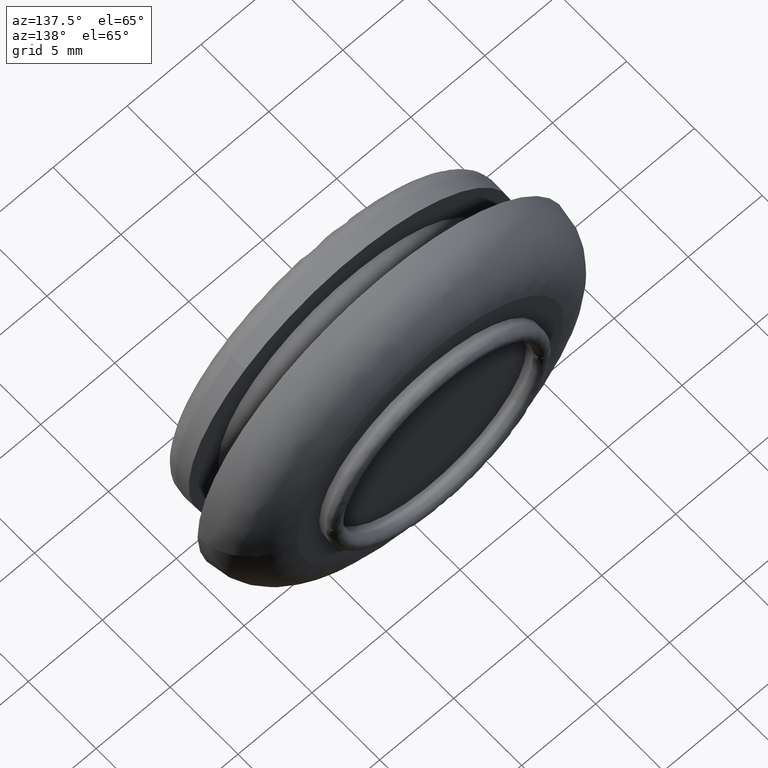
[diagram: clean part render]
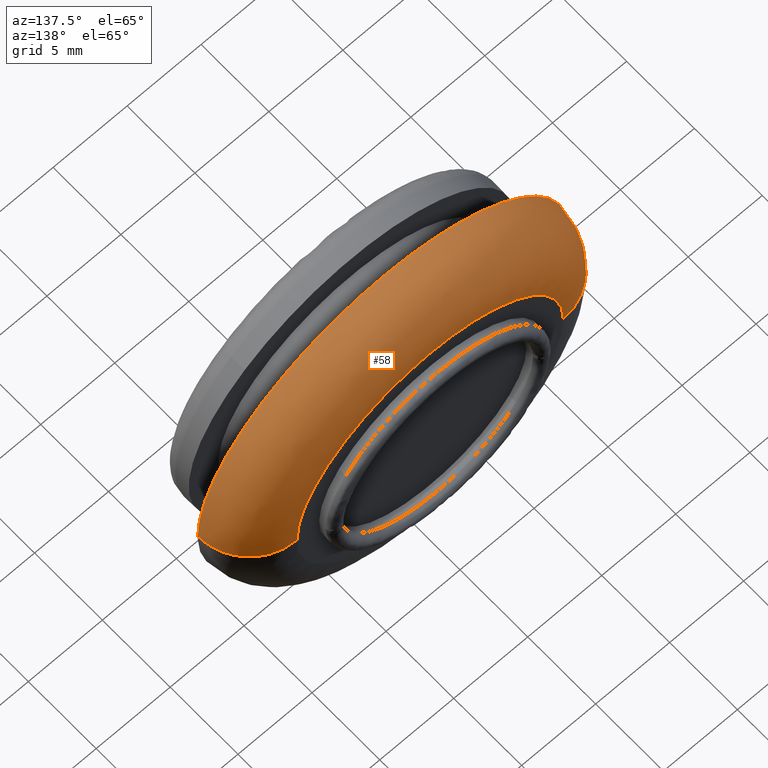
[diagram: same view with one face highlighted and labeled with its STEP entity id]
A machine part, auxiliary view. The second image highlights one B-rep face of the part: STEP entity #58.
In plain terms, the highlighted face is a freeform B-spline surface patch.
Its self-contained STEP definition (entity closure, byte-faithful):
#58=ADVANCED_FACE('',(#247),#246,.T.);
#246=( BOUNDED_SURFACE() B_SPLINE_SURFACE( 2,2,((#422,#423,#424,#425,#426),(#427,#428,#429,#430,#431),(#432,#433,#434,#435,#436),(#437,#438,#439,#440,#441),(#442,#443,#444,#445,#446)), .UNSPECIFIED.,.F.,.F.,.F.) B_SPLINE_SURFACE_WITH_KNOTS((3,2,3),(3,2,3),(-1.57079683616E+000,-1.04712131519E+000,2.28708010453E-004),(0.00000000000E+000,1.57079632679E+000,3.14159265359E+000), .UNSPECIFIED. ) GEOMETRIC_REPRESENTATION_ITEM() RATIONAL_B_SPLINE_SURFACE(((9.32993641633E-001,6.59726130803E-001,9.32993641633E-001,6.59726130803E-001,9.32993641633E-001),(9.32993576457E-001,6.59726084716E-001,9.32993576457E-001,6.59726084716E-001,9.32993576457E-001),(1.00000000000E+000,7.07106781187E-001,1.00000000000E+000,7.07106781187E-001,1.00000000000E+000),(8.65987283266E-001,6.12345480419E-001,8.65987283266E-001,6.12345480419E-001,8.65987283266E-001),(1.00000000000E+000,7.07106781187E-001,1.00000000000E+000,7.07106781187E-001,1.00000000000E+000))) REPRESENTATION_ITEM('') SURFACE() );
#247=FACE_OUTER_BOUND('',#447,.T.);
#422=CARTESIAN_POINT('',(-8.99999617532E+000,7.80000000000E+000,2.00000000036E-006));
#423=CARTESIAN_POINT('',(-8.99999617532E+000,7.80000000000E+000,8.99999817532E+000));
#424=CARTESIAN_POINT('',(3.19218028180E-015,7.80000000000E+000,8.99999817532E+000));
#425=CARTESIAN_POINT('',(8.99999617532E+000,7.80000000000E+000,8.99999817532E+000));
#426=CARTESIAN_POINT('',(8.99999617532E+000,7.80000000000E+000,1.99999999816E-006));
#427=CARTESIAN_POINT('',(-9.93796231978E+000,7.80000048900E+000,2.00000000048E-006));
#428=CARTESIAN_POINT('',(-9.93796231978E+000,7.80000048900E+000,9.93796431978E+000));
#429=CARTESIAN_POINT('',(3.30704430339E-015,7.80000048900E+000,9.93796431978E+000));
#430=CARTESIAN_POINT('',(9.93796231978E+000,7.80000048900E+000,9.93796431978E+000));
#431=CARTESIAN_POINT('',(9.93796231978E+000,7.80000048900E+000,1.99999999804E-006));
#432=CARTESIAN_POINT('',(-1.07502290730E+001,7.33095549143E+000,2.00000000053E-006));
#433=CARTESIAN_POINT('',(-1.07502290730E+001,7.33095549143E+000,1.07502310730E+001));
#434=CARTESIAN_POINT('',(3.35889870196E-015,7.33095549143E+000,1.07502310730E+001));
#435=CARTESIAN_POINT('',(1.07502290730E+001,7.33095549143E+000,1.07502310730E+001));
#436=CARTESIAN_POINT('',(1.07502290730E+001,7.33095549143E+000,1.99999999790E-006));
#437=CARTESIAN_POINT('',(-1.25004601460E+001,6.32028119495E+000,2.00000000065E-006));
#438=CARTESIAN_POINT('',(-1.25004601460E+001,6.32028119495E+000,1.25004621460E+001));
#439=CARTESIAN_POINT('',(3.47063192173E-015,6.32028119495E+000,1.25004621460E+001));
#440=CARTESIAN_POINT('',(1.25004601460E+001,6.32028119495E+000,1.25004621460E+001));
#441=CARTESIAN_POINT('',(1.25004601460E+001,6.32028119495E+000,1.99999999758E-006));
#442=CARTESIAN_POINT('',(-1.24999979085E+001,4.29919952197E+000,2.00000000045E-006));
#443=CARTESIAN_POINT('',(-1.24999979085E+001,4.29919952197E+000,1.24999999085E+001));
#444=CARTESIAN_POINT('',(3.26539973210E-015,4.29919952197E+000,1.24999999085E+001));
#445=CARTESIAN_POINT('',(1.24999979085E+001,4.29919952197E+000,1.24999999085E+001));
#446=CARTESIAN_POINT('',(1.24999979085E+001,4.29919952197E+000,1.99999999739E-006));
#447=EDGE_LOOP('',(#652,#653,#654,#655,#656,#657));
#652=ORIENTED_EDGE('',*,*,#696,.T.);
#653=ORIENTED_EDGE('',*,*,#752,.T.);
#654=ORIENTED_EDGE('',*,*,#690,.F.);
#655=ORIENTED_EDGE('',*,*,#689,.F.);
#656=ORIENTED_EDGE('',*,*,#688,.F.);
#657=ORIENTED_EDGE('',*,*,#753,.F.);
#688=EDGE_CURVE('',#764,#771,#772,.T.);
#689=EDGE_CURVE('',#771,#778,#779,.T.);
#690=EDGE_CURVE('',#778,#785,#786,.T.);
#696=EDGE_CURVE('',#827,#819,#828,.T.);
#752=EDGE_CURVE('',#819,#785,#1206,.T.);
#753=EDGE_CURVE('',#827,#764,#1212,.T.);
#764=VERTEX_POINT('',#1236);
#771=VERTEX_POINT('',#1241);
#772=CIRCLE('',#1245,1.24999980000E+001);
#778=VERTEX_POINT('',#1246);
#779=CIRCLE('',#1250,1.24999980000E+001);
#785=VERTEX_POINT('',#1251);
#786=CIRCLE('',#1255,1.24999980000E+001);
#819=VERTEX_POINT('',#1275);
#827=VERTEX_POINT('',#1281);
#828=CIRCLE('',#1285,8.99999800002E+000);
#1206=(BOUNDED_CURVE() B_SPLINE_CURVE(2,(#1526,#1527,#1528,#1529,#1530),.UNSPECIFIED.,.F.,.F.) B_SPLINE_CURVE_WITH_KNOTS((3,2,3),(-1.57079631639E+000,-1.04712131519E+000,-9.46111806129E-006),.UNSPECIFIED.) CURVE() GEOMETRIC_REPRESENTATION_ITEM() RATIONAL_B_SPLINE_CURVE((9.32993641633E-001,9.32993642964E-001,1.00000000000E+000,8.66017757980E-001,9.99939064433E-001)) REPRESENTATION_ITEM('') );
#1212=(BOUNDED_CURVE() B_SPLINE_CURVE(2,(#1531,#1532,#1533,#1534,#1535),.UNSPECIFIED.,.F.,.F.) B_SPLINE_CURVE_WITH_KNOTS((3,2,3),(-1.57079649551E+000,-1.04712131519E+000,2.28708010453E-004),.UNSPECIFIED.) CURVE() GEOMETRIC_REPRESENTATION_ITEM() RATIONAL_B_SPLINE_CURVE((9.32993641633E-001,9.32993620045E-001,1.00000000000E+000,8.65987283266E-001,1.00000000000E+000)) REPRESENTATION_ITEM('') );
#1236=CARTESIAN_POINT('',(1.24999979000E+001,4.29999557929E+000,-1.57887673190E-003));
#1241=CARTESIAN_POINT('',(0.00000000000E+000,4.30000000000E+000,1.25000000000E+001));
#1242=CARTESIAN_POINT('',(-1.42819089888E-012,4.29999776201E+000,2.00000574235E-006));
#1243=DIRECTION('',(-1.74594982392E-007,-1.00000000000E+000,1.79039036247E-007));
#1244=DIRECTION('',(-9.99684201972E-001,1.79039023334E-007,2.51295906572E-002));
#1245=AXIS2_PLACEMENT_3D('',#1242,#1243,#1244);
#1246=CARTESIAN_POINT('',(-1.24960505253E+001,4.29999552403E+000,3.14121832951E-001));
#1247=CARTESIAN_POINT('',(1.69197988953E-012,4.29999776201E+000,2.00000576633E-006));
#1248=DIRECTION('',(1.83596179930E-007,-1.00000000000E+000,1.79039023334E-007));
#1249=DIRECTION('',(1.35358412820E-013,-1.79039023334E-007,-1.00000000000E+000));
#1250=AXIS2_PLACEMENT_3D('',#1247,#1248,#1249);
#1251=CARTESIAN_POINT('',(-1.24999980000E+001,4.29999557958E+000,1.99964851763E-006));
#1252=CARTESIAN_POINT('',(1.42996725572E-012,4.29999776201E+000,1.99999426176E-006));
#1253=DIRECTION('',(1.74594982822E-007,-1.00000000000E+000,-1.79039019170E-007));
#1254=DIRECTION('',(9.99684201972E-001,1.79039023334E-007,-2.51295906572E-002));
#1255=AXIS2_PLACEMENT_3D('',#1252,#1253,#1254);
#1275=CARTESIAN_POINT('',(-8.99999800002E+000,7.80000000000E+000,1.86356600407E-006));
#1281=CARTESIAN_POINT('',(8.99999800001E+000,7.80000000000E+000,2.04545974144E-006));
#1282=CARTESIAN_POINT('',(-7.34434735250E-012,7.80000000000E+000,1.99998263284E-006));
#1283=DIRECTION('',(4.41064689631E-016,-1.00000000000E+000,9.69166118870E-015));
#1284=DIRECTION('',(8.16589851294E-013,-9.69166118870E-015,-1.00000000000E+000));
#1285=AXIS2_PLACEMENT_3D('',#1282,#1283,#1284);
#1526=CARTESIAN_POINT('',(-8.99999803727E+000,7.80000000000E+000,2.00000000036E-006));
#1527=CARTESIAN_POINT('',(-9.93796318390E+000,7.79999999001E+000,2.00000000048E-006));
#1528=CARTESIAN_POINT('',(-1.07502290730E+001,7.33095549143E+000,2.00000000053E-006));
#1529=CARTESIAN_POINT('',(-1.25000005649E+001,6.32054658097E+000,2.00000000065E-006));
#1530=CARTESIAN_POINT('',(-1.24999980000E+001,4.29999555710E+000,2.00000000045E-006));
#1531=CARTESIAN_POINT('',(8.99999739562E+000,7.80000000000E+000,1.99999999816E-006));
#1532=CARTESIAN_POINT('',(9.93796288611E+000,7.80000016197E+000,1.99999999804E-006));
#1533=CARTESIAN_POINT('',(1.07502290730E+001,7.33095549143E+000,1.99999999790E-006));
#1534=CARTESIAN_POINT('',(1.25004601460E+001,6.32028119495E+000,1.99999999758E-006));
#1535=CARTESIAN_POINT('',(1.24999979085E+001,4.29919952197E+000,1.99999999739E-006));